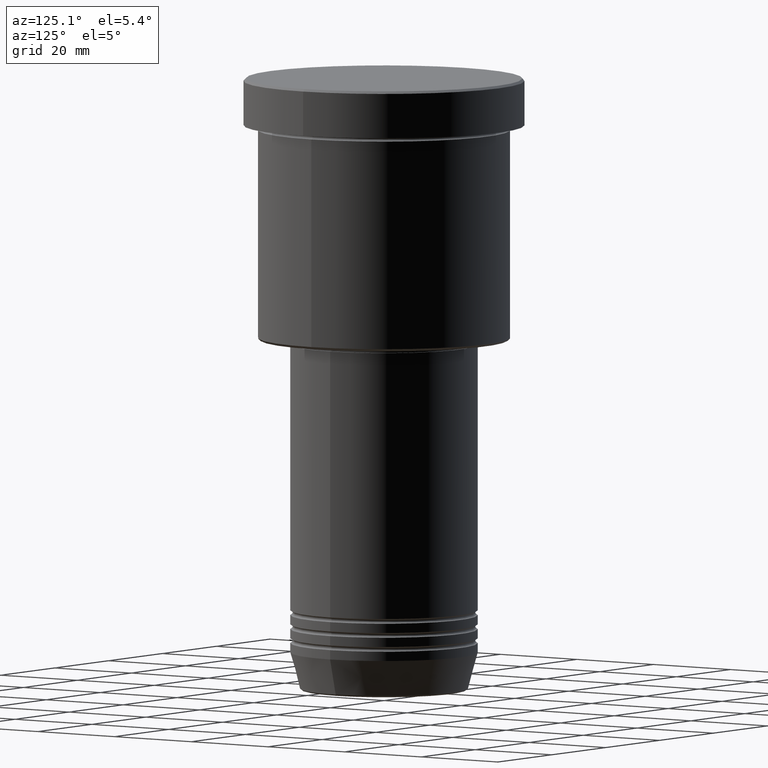
[diagram: clean part render]
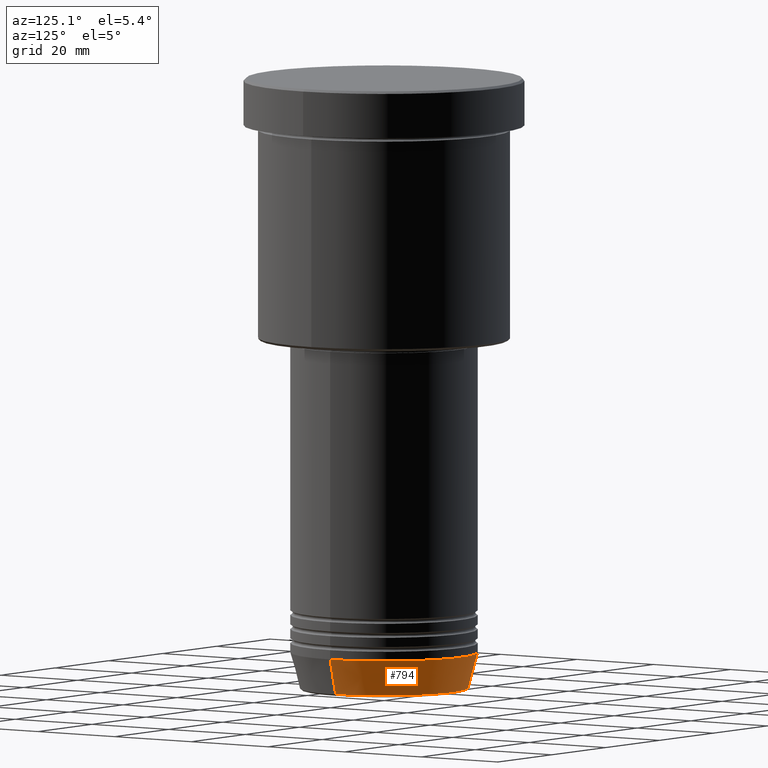
[diagram: same view with one face highlighted and labeled with its STEP entity id]
A machine part, auxiliary view. The second image highlights one B-rep face of the part: STEP entity #794.
In plain terms, the highlighted conical surface has half-angle 15 deg.
Its self-contained STEP definition (entity closure, byte-faithful):
#21 = CARTESIAN_POINT ( 'NONE',  ( 17.95570587970606269, 0.000000000000000000, -130.6294095225512422 ) ) ;
#92 = VECTOR ( 'NONE', #782, 1000.000000000000114 ) ;
#99 = DIRECTION ( 'NONE',  ( 1.000000000000000000, 0.000000000000000000, 0.000000000000000000 ) ) ;
#105 = EDGE_CURVE ( 'NONE', #1076, #958, #816, .T. ) ;
#192 = VERTEX_POINT ( 'NONE', #929 ) ;
#203 = DIRECTION ( 'NONE',  ( -0.000000000000000000, -0.000000000000000000, 1.000000000000000000 ) ) ;
#208 = ORIENTED_EDGE ( 'NONE', *, *, #939, .T. ) ;
#223 = DIRECTION ( 'NONE',  ( -0.2588190451025212391, 3.169619151431771721E-17, 0.9659258262890680902 ) ) ;
#228 = VERTEX_POINT ( 'NONE', #21 ) ;
#323 = LINE ( 'NONE', #587, #92 ) ;
#383 = EDGE_LOOP ( 'NONE', ( #208, #673, #1005, #695 ) ) ;
#395 = FACE_OUTER_BOUND ( 'NONE', #383, .T. ) ;
#396 = LINE ( 'NONE', #780, #562 ) ;
#432 = CONICAL_SURFACE ( 'NONE', #580, 20.00000000000000000, 0.2617993877991499629 ) ;
#459 = CARTESIAN_POINT ( 'NONE',  ( 0.000000000000000000, 0.000000000000000000, -123.0000000000000000 ) ) ;
#538 = AXIS2_PLACEMENT_3D ( 'NONE', #459, #637, #99 ) ;
#562 = VECTOR ( 'NONE', #223, 1000.000000000000114 ) ;
#580 = AXIS2_PLACEMENT_3D ( 'NONE', #756, #766, #1038 ) ;
#587 = CARTESIAN_POINT ( 'NONE',  ( 20.00000000000000000, 0.000000000000000000, -123.0000000000000000 ) ) ;
#624 = CARTESIAN_POINT ( 'NONE',  ( 0.000000000000000000, 0.000000000000000000, -130.6294095225512422 ) ) ;
#637 = DIRECTION ( 'NONE',  ( -0.000000000000000000, -0.000000000000000000, 1.000000000000000000 ) ) ;
#640 = DIRECTION ( 'NONE',  ( 1.000000000000000000, 0.000000000000000000, 0.000000000000000000 ) ) ;
#656 = EDGE_CURVE ( 'NONE', #192, #958, #396, .T. ) ;
#673 = ORIENTED_EDGE ( 'NONE', *, *, #656, .T. ) ;
#695 = ORIENTED_EDGE ( 'NONE', *, *, #1093, .F. ) ;
#756 = CARTESIAN_POINT ( 'NONE',  ( 0.000000000000000000, 0.000000000000000000, -123.0000000000000000 ) ) ;
#760 = CARTESIAN_POINT ( 'NONE',  ( -20.00000000000000000, 2.449293598294706513E-15, -123.0000000000000000 ) ) ;
#766 = DIRECTION ( 'NONE',  ( -0.000000000000000000, -0.000000000000000000, 1.000000000000000000 ) ) ;
#780 = CARTESIAN_POINT ( 'NONE',  ( -20.00000000000000000, 2.449293598294706513E-15, -123.0000000000000000 ) ) ;
#782 = DIRECTION ( 'NONE',  ( 0.2588190451025212391, 0.000000000000000000, 0.9659258262890680902 ) ) ;
#794 = ADVANCED_FACE ( 'NONE', ( #395 ), #432, .T. ) ;
#816 = CIRCLE ( 'NONE', #538, 20.00000000000000000 ) ;
#860 = CIRCLE ( 'NONE', #1141, 17.95570587970606269 ) ;
#929 = CARTESIAN_POINT ( 'NONE',  ( -17.95570587970606269, 2.324116685748020582E-15, -130.6294095225512422 ) ) ;
#939 = EDGE_CURVE ( 'NONE', #228, #192, #860, .T. ) ;
#958 = VERTEX_POINT ( 'NONE', #760 ) ;
#972 = CARTESIAN_POINT ( 'NONE',  ( 20.00000000000000000, 0.000000000000000000, -123.0000000000000000 ) ) ;
#1005 = ORIENTED_EDGE ( 'NONE', *, *, #105, .F. ) ;
#1038 = DIRECTION ( 'NONE',  ( 1.000000000000000000, 0.000000000000000000, 0.000000000000000000 ) ) ;
#1076 = VERTEX_POINT ( 'NONE', #972 ) ;
#1093 = EDGE_CURVE ( 'NONE', #228, #1076, #323, .T. ) ;
#1141 = AXIS2_PLACEMENT_3D ( 'NONE', #624, #203, #640 ) ;